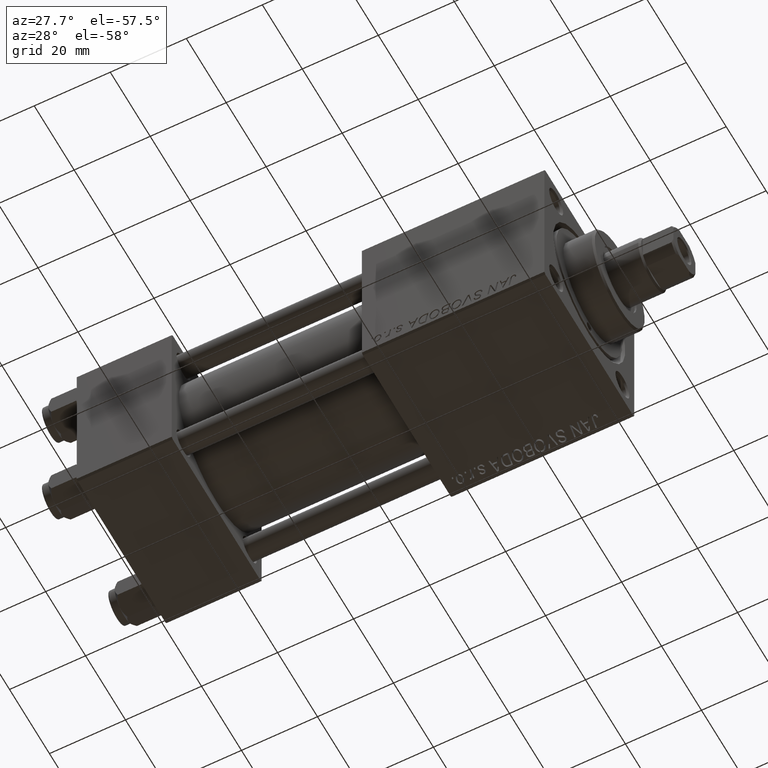
[diagram: clean part render]
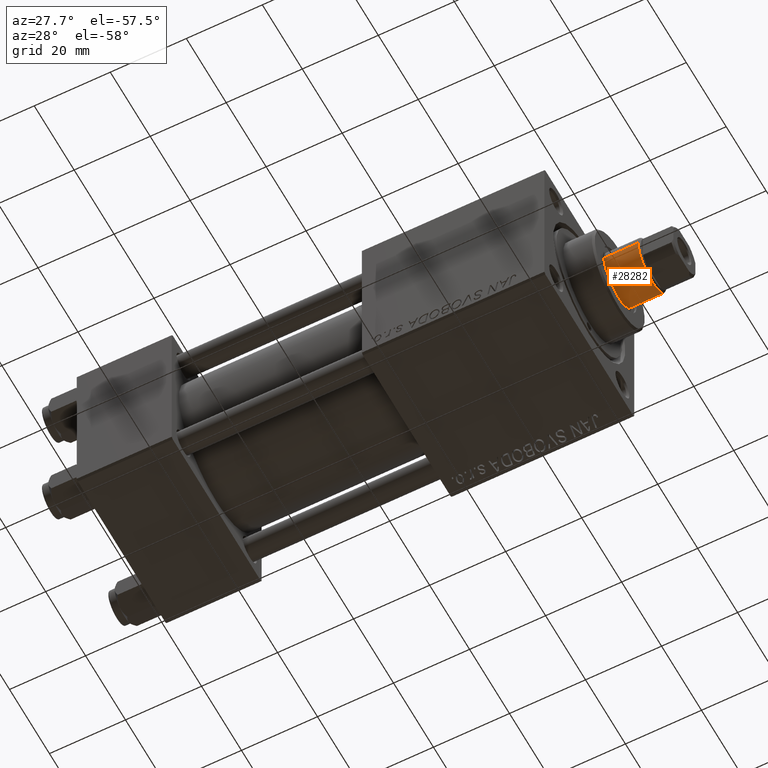
[diagram: same view with one face highlighted and labeled with its STEP entity id]
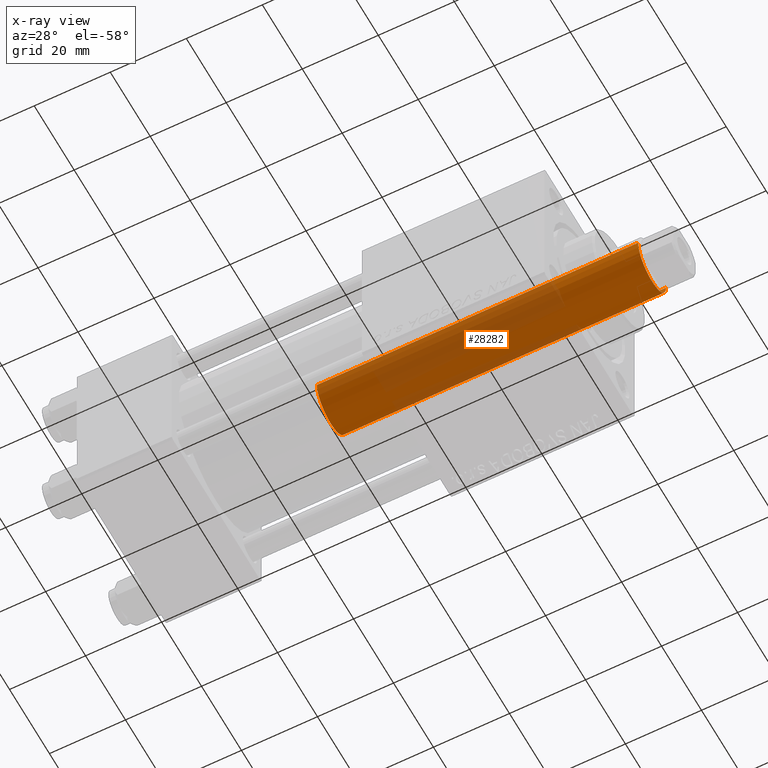
[diagram: x-ray of the same camera — body ghosted, the highlighted face saturated]
A machine part, auxiliary view. The second image highlights one B-rep face of the part: STEP entity #28282.
The next image is the same camera in x-ray: the body ghosted, the highlighted face saturated — about 43% of this face is hidden behind the body in this view.
In plain terms, the highlighted cylindrical surface (edge-blend (fillet) strip) has radius 7 mm, axis along (-1, 0, 0).
Its self-contained STEP definition (entity closure, byte-faithful):
#342 = CYLINDRICAL_SURFACE ( 'NONE', #18943, 7.000000000000000000 ) ;
#3918 = DIRECTION ( 'NONE',  ( -0.000000000000000000, -0.000000000000000000, -1.000000000000000000 ) ) ;
#3945 = CARTESIAN_POINT ( 'NONE',  ( -7.000000000000000000, 0.000000000000000000, 115.0000000000000000 ) ) ;
#6582 = LINE ( 'NONE', #10649, #38703 ) ;
#7547 = DIRECTION ( 'NONE',  ( 0.000000000000000000, 0.000000000000000000, 1.000000000000000000 ) ) ;
#7973 = FACE_OUTER_BOUND ( 'NONE', #45515, .T. ) ;
#8402 = ORIENTED_EDGE ( 'NONE', *, *, #40827, .T. ) ;
#8635 = CIRCLE ( 'NONE', #46832, 7.000000000000000000 ) ;
#10192 = CARTESIAN_POINT ( 'NONE',  ( -7.000000000000000000, 0.000000000000000000, 114.4999999999999858 ) ) ;
#10649 = CARTESIAN_POINT ( 'NONE',  ( 7.000000000000000000, 8.572527594031473190E-16, 115.0000000000000000 ) ) ;
#11526 = VERTEX_POINT ( 'NONE', #30246 ) ;
#12117 = CARTESIAN_POINT ( 'NONE',  ( 7.000000000000000000, 8.572527594031473190E-16, 114.4999999999999858 ) ) ;
#15356 = DIRECTION ( 'NONE',  ( -1.000000000000000000, 0.000000000000000000, 0.000000000000000000 ) ) ;
#17769 = ORIENTED_EDGE ( 'NONE', *, *, #19633, .F. ) ;
#18943 = AXIS2_PLACEMENT_3D ( 'NONE', #42356, #3918, #15356 ) ;
#19256 = DIRECTION ( 'NONE',  ( 1.000000000000000000, 0.000000000000000000, 0.000000000000000000 ) ) ;
#19633 = EDGE_CURVE ( 'NONE', #35133, #45641, #32637, .T. ) ;
#24803 = CIRCLE ( 'NONE', #29735, 7.000000000000000000 ) ;
#28282 = ADVANCED_FACE ( 'NONE', ( #7973 ), #342, .T. ) ;
#29735 = AXIS2_PLACEMENT_3D ( 'NONE', #30456, #41386, #41128 ) ;
#30246 = CARTESIAN_POINT ( 'NONE',  ( 7.000000000000000000, 8.572527594031473190E-16, 30.00000000000000000 ) ) ;
#30456 = CARTESIAN_POINT ( 'NONE',  ( 0.000000000000000000, 0.000000000000000000, 114.4999999999999858 ) ) ;
#30727 = CARTESIAN_POINT ( 'NONE',  ( 0.000000000000000000, 0.000000000000000000, 30.00000000000000000 ) ) ;
#32637 = LINE ( 'NONE', #3945, #39107 ) ;
#35133 = VERTEX_POINT ( 'NONE', #10192 ) ;
#35465 = ORIENTED_EDGE ( 'NONE', *, *, #44401, .T. ) ;
#38658 = EDGE_CURVE ( 'NONE', #35133, #40776, #24803, .T. ) ;
#38703 = VECTOR ( 'NONE', #44504, 1000.000000000000000 ) ;
#39053 = ORIENTED_EDGE ( 'NONE', *, *, #38658, .T. ) ;
#39107 = VECTOR ( 'NONE', #50266, 1000.000000000000000 ) ;
#40078 = CARTESIAN_POINT ( 'NONE',  ( -7.000000000000000000, 0.000000000000000000, 30.00000000000000000 ) ) ;
#40776 = VERTEX_POINT ( 'NONE', #12117 ) ;
#40827 = EDGE_CURVE ( 'NONE', #11526, #45641, #8635, .T. ) ;
#41128 = DIRECTION ( 'NONE',  ( 1.000000000000000000, 0.000000000000000000, 0.000000000000000000 ) ) ;
#41386 = DIRECTION ( 'NONE',  ( 0.000000000000000000, 0.000000000000000000, -1.000000000000000000 ) ) ;
#42356 = CARTESIAN_POINT ( 'NONE',  ( 0.000000000000000000, 0.000000000000000000, 115.0000000000000000 ) ) ;
#44401 = EDGE_CURVE ( 'NONE', #40776, #11526, #6582, .T. ) ;
#44504 = DIRECTION ( 'NONE',  ( -0.000000000000000000, -0.000000000000000000, -1.000000000000000000 ) ) ;
#45515 = EDGE_LOOP ( 'NONE', ( #39053, #35465, #8402, #17769 ) ) ;
#45641 = VERTEX_POINT ( 'NONE', #40078 ) ;
#46832 = AXIS2_PLACEMENT_3D ( 'NONE', #30727, #7547, #19256 ) ;
#50266 = DIRECTION ( 'NONE',  ( -0.000000000000000000, -0.000000000000000000, -1.000000000000000000 ) ) ;